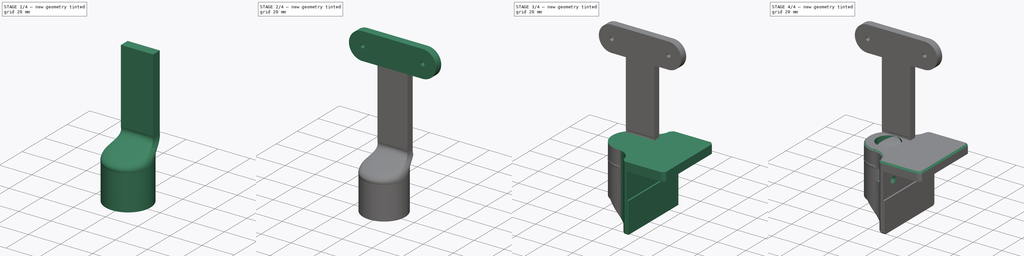
[diagram: build sequence overview — one tinted view per stage of 4, left to right]
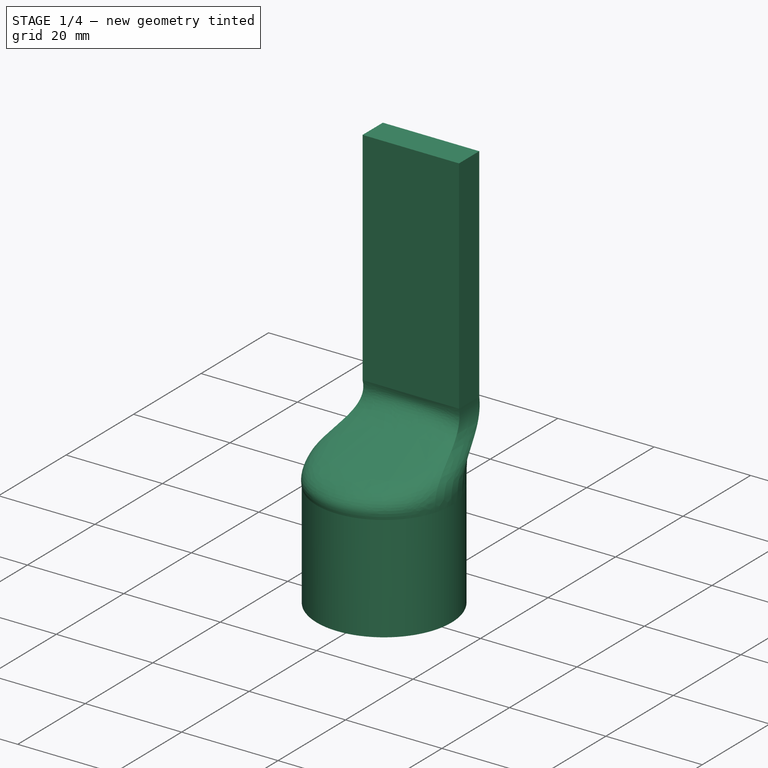
[diagram: stage 1 of 4 — iso view after this stage's code; geometry added in this stage tinted green]
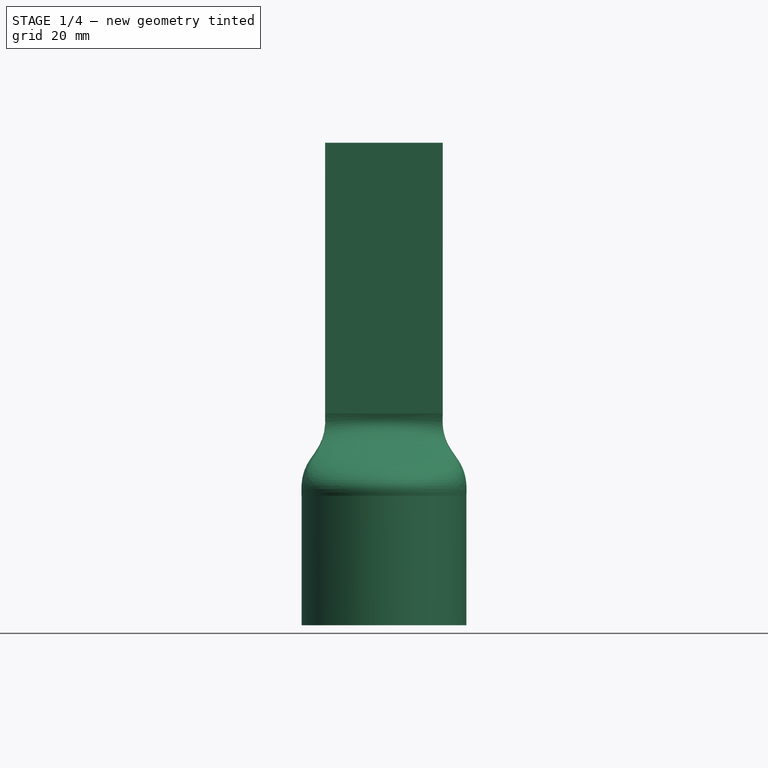
[diagram: stage 1 of 4 — front view after this stage's code; geometry added in this stage tinted green]
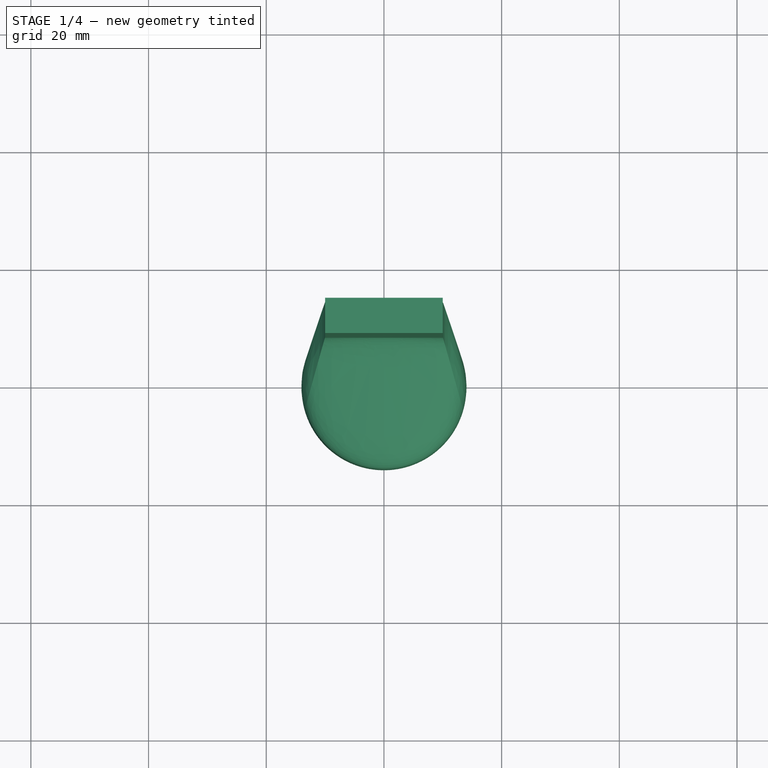
[diagram: stage 1 of 4 — top view after this stage's code; geometry added in this stage tinted green]
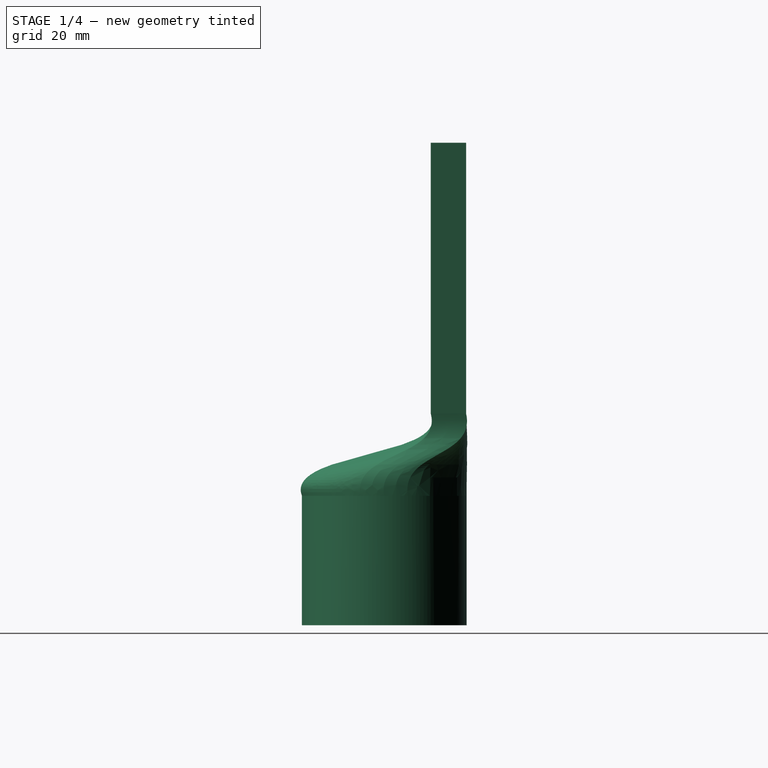
[diagram: stage 1 of 4 — right view after this stage's code; geometry added in this stage tinted green]
FCSTD DOCUMENT  (FreeCAD 0.21R33771 (Git))
Label: _RaspiHolder_Stand
License: Creative Commons Attribution 4.0
LicenseURL: https://creativecommons.org/licenses/by/4.0/
objects: Sketcher::SketchObject×12, PartDesign::Pad×4, PartDesign::Pocket×3, PartDesign::Chamfer×2, PartDesign::Body×2, PartDesign::Hole×1, PartDesign::AdditiveLoft×1
note: 36 computed .brp shape members not serialized (recipe doc carries the construction recipe); baked Part::Feature solids carry a one-line shape summary decoded from their .brp

FEATURE [PartDesign::Body] Body  label="StandFoot"
  Group = -> [Sketch,Sketch001,Pad,Pocket,Sketch002,Pocket001,Sketch003,Hole,Chamfer]
  Origin = -> Origin
  Tip = -> Chamfer
FEATURE [Sketcher::SketchObject] Sketch004
  AttachmentOffset = pos=(0,0,2) rot=(0,0,1;0rad)
  FullyConstrained = true
  MapMode = 5
  Placement = pos=(0,0,2) rot=(0,0,1;0rad)
  Support = -> [XY_Plane001]
  sketch-geometry (6):
    g0: LineSegment StartX=-10 StartY=13.9 StartZ=0 EndX=10 EndY=13.9 EndZ=0
    g1: LineSegment StartX=10 StartY=13.9 StartZ=0 EndX=10 EndY=7.9 EndZ=0
    g2: LineSegment StartX=10 StartY=7.9 StartZ=0 EndX=-10 EndY=7.9 EndZ=0
    g3: LineSegment StartX=-10 StartY=7.9 StartZ=0 EndX=-10 EndY=13.9 EndZ=0
    g4: Circle CenterX=0 CenterY=0 CenterZ=0 NormalX=0 NormalY=0 NormalZ=1 AngleXU=0 Radius=14
    g5: GeomPoint X=0 Y=14 Z=0
  constraints (15):
    c: Coincident(g0,g1)
    c: Coincident(g1,g2)
    c: Coincident(g2,g3)
    c: Coincident(g3,g0)
    c: Horizontal(g0)
    c: Vertical(g1)
    c: Vertical(g3)
    c: DistanceY(g3,g3) = 6
    c: DistanceX(g0,g0) = 20
    c: Symmetric(g2,g1,g-2)
    c: Coincident(g4,g-1)
    c: Diameter(g4) = 28
    c: PointOnObject(g5,g4)
    c: PointOnObject(g5,g-2)
    c: DistanceY(g0,g5) = 0.1
FEATURE [Sketcher::SketchObject] Sketch005
  FullyConstrained = true
  MapMode = 5
  Support = -> [XY_Plane001]
  expr: Constraints[11] = Sketch004.Constraints[11]
  expr: Constraints[7] = Sketch004.Constraints[7]
  expr: Constraints[8] = Sketch004.Constraints[8]
  sketch-geometry (5):
    g0: LineSegment StartX=-10 StartY=14 StartZ=0 EndX=10 EndY=14 EndZ=0
    g1: LineSegment StartX=10 StartY=14 StartZ=0 EndX=10 EndY=8 EndZ=0
    g2: LineSegment StartX=10 StartY=8 StartZ=0 EndX=-10 EndY=8 EndZ=0
    g3: LineSegment StartX=-10 StartY=8 StartZ=0 EndX=-10 EndY=14 EndZ=0
    g4: Circle CenterX=0 CenterY=0 CenterZ=0 NormalX=0 NormalY=0 NormalZ=1 AngleXU=0 Radius=14
  constraints (13):
    c: Coincident(g0,g1)
    c: Coincident(g1,g2)
    c: Coincident(g2,g3)
    c: Coincident(g3,g0)
    c: Horizontal(g0)
    c: Vertical(g1)
    c: Vertical(g3)
    c: DistanceY(g3,g3) = 6
    c: DistanceX(g0,g0) = 20
    c: Symmetric(g2,g1,g-2)
    c: Coincident(g4,g-1)
    c: Diameter(g4) = 28
    c: Tangent(g0,g4)
FEATURE [Sketcher::SketchObject] Sketch006
  AttachmentOffset = pos=(0,0,-10) rot=(0,0,1;0rad)
  FullyConstrained = true
  MapMode = 5
  Placement = pos=(0,0,-10) rot=(0,0,1;0rad)
  Support = -> [XY_Plane001]
  sketch-geometry (1):
    g0: Circle CenterX=0 CenterY=0 CenterZ=0 NormalX=0 NormalY=0 NormalZ=1 AngleXU=0 Radius=14
  constraints (2):
    c: Coincident(g0,g-1)
    c: Diameter(g0) = 28
FEATURE [Sketcher::SketchObject] Sketch007
  AttachmentOffset = pos=(0,0,-12) rot=(0,0,1;0rad)
  FullyConstrained = true
  MapMode = 5
  Placement = pos=(0,0,-12) rot=(0,0,1;0rad)
  Support = -> [XY_Plane001]
  sketch-geometry (1):
    g0: Circle CenterX=0 CenterY=0 CenterZ=0 NormalX=0 NormalY=0 NormalZ=1 AngleXU=0 Radius=14
  constraints (2):
    c: Coincident(g0,g-1)
    c: Diameter(g0) = 28
FEATURE [Sketcher::SketchObject] Sketch008
  AttachmentOffset = pos=(0,0,-12) rot=(0,0,1;0rad)
  FullyConstrained = true
  MapMode = 5
  Placement = pos=(0,0,-12) rot=(0,0,1;0rad)
  Support = -> [XY_Plane001]
  sketch-geometry (2):
    g0: Circle CenterX=0 CenterY=0 CenterZ=0 NormalX=0 NormalY=0 NormalZ=1 AngleXU=0 Radius=14
    g1: Circle CenterX=0 CenterY=0 CenterZ=0 NormalX=0 NormalY=0 NormalZ=1 AngleXU=0 Radius=8
  constraints (4):
    c: Coincident(g0,g-1)
    c: Diameter(g0) = 28
    c: Coincident(g1,g0)
    c: Diameter(g1) = 16
FEATURE [PartDesign::AdditiveLoft] AdditiveLoft
  Closed = false
  Profile = -> Sketch004
  Refine = true
  Ruled = false
  Sections = -> [Sketch005,Sketch006,Sketch007]
FEATURE [PartDesign::Pad] Pad001
  BaseFeature = -> AdditiveLoft
  Direction = (0,0,1)
  Length = 22
  Length2 = 10
  Profile = -> Sketch008
  ReferenceAxis = -> Sketch008 [N_Axis]
  Refine = true
  Reversed = true
  Type = 0
FEATURE [Sketcher::SketchObject] Sketch009
  AttachmentOffset = pos=(0,0,2) rot=(0,0,1;0rad)
  FullyConstrained = true
  MapMode = 5
  Placement = pos=(0,0,2) rot=(0,0,1;0rad)
  Support = -> [XY_Plane001]
  expr: Constraints[11] = Sketch004.Constraints[11]
  expr: Constraints[14] = Sketch004.Constraints[14]
  expr: Constraints[7] = Sketch004.Constraints[7]
  expr: Constraints[8] = Sketch004.Constraints[8]
  sketch-geometry (6):
    g0: LineSegment StartX=-10 StartY=13.9 StartZ=0 EndX=10 EndY=13.9 EndZ=0
    g1: LineSegment StartX=10 StartY=13.9 StartZ=0 EndX=10 EndY=7.9 EndZ=0
    g2: LineSegment StartX=10 StartY=7.9 StartZ=0 EndX=-10 EndY=7.9 EndZ=0
    g3: LineSegment StartX=-10 StartY=7.9 StartZ=0 EndX=-10 EndY=13.9 EndZ=0
    g4: Circle CenterX=0 CenterY=0 CenterZ=0 NormalX=0 NormalY=0 NormalZ=1 AngleXU=0 Radius=14
    g5: GeomPoint X=0 Y=14 Z=0
  constraints (15):
    c: Coincident(g0,g1)
    c: Coincident(g1,g2)
    c: Coincident(g2,g3)
    c: Coincident(g3,g0)
    c: Horizontal(g0)
    c: Vertical(g1)
    c: Vertical(g3)
    c: DistanceY(g3,g3) = 6
    c: DistanceX(g0,g0) = 20
    c: Symmetric(g2,g1,g-2)
    c: Coincident(g4,g-1)
    c: Diameter(g4) = 28
    c: PointOnObject(g5,g4)
    c: PointOnObject(g5,g-2)
    c: DistanceY(g0,g5) = 0.1
FEATURE [PartDesign::Pad] Pad002
  BaseFeature = -> Pad001
  Direction = (0,0,1)
  Length = 46
  Length2 = 10
  Profile = -> Sketch009
  ReferenceAxis = -> Sketch009 [N_Axis]
  Refine = true
  Type = 0
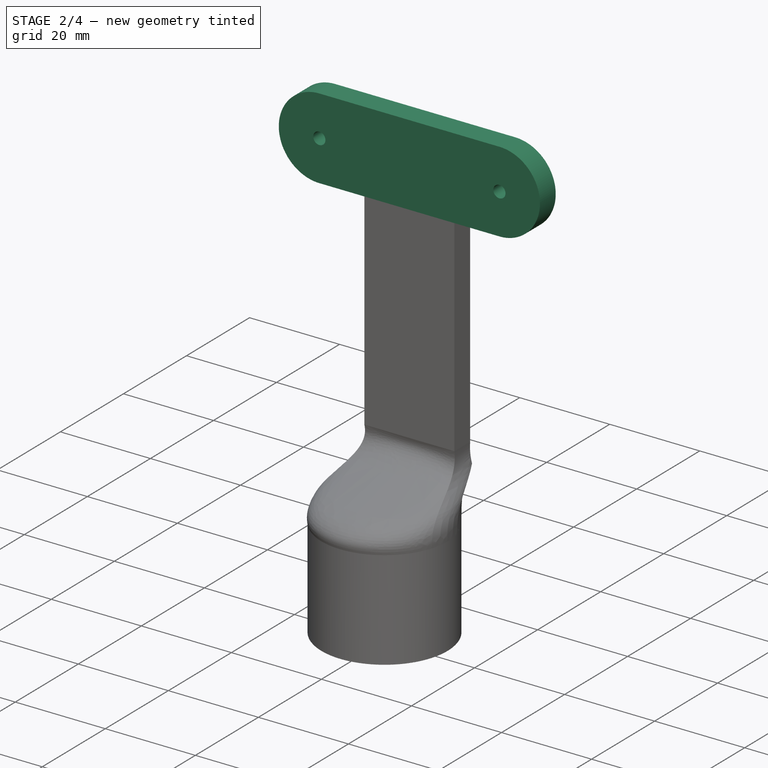
[diagram: stage 2 of 4 — iso view after this stage's code; geometry added in this stage tinted green]
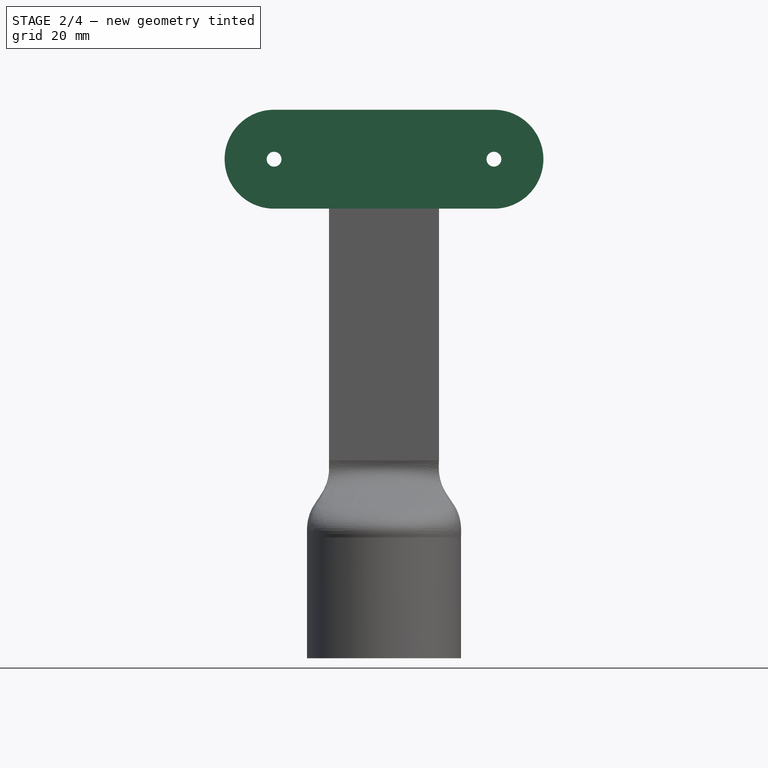
[diagram: stage 2 of 4 — front view after this stage's code; geometry added in this stage tinted green]
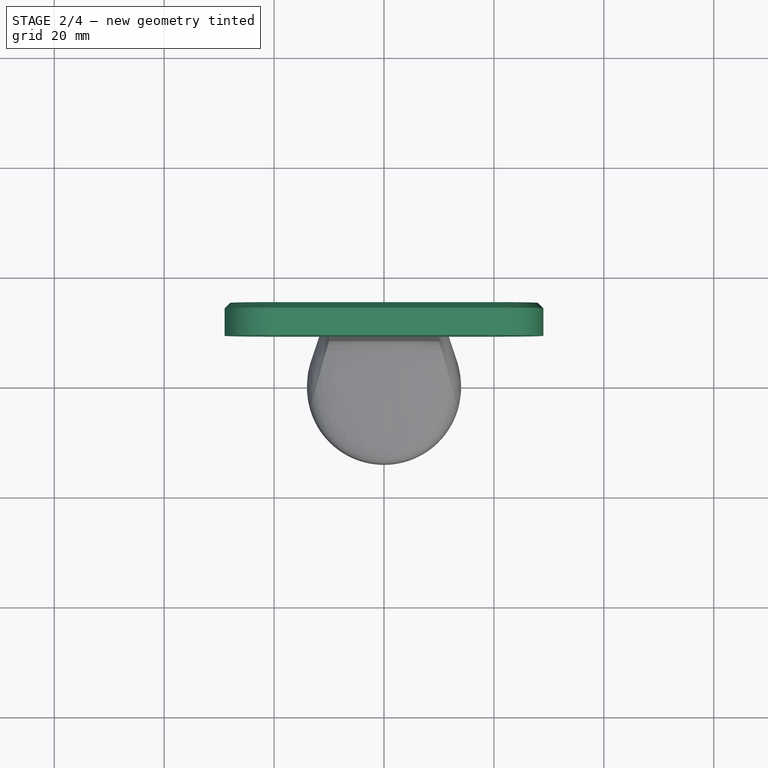
[diagram: stage 2 of 4 — top view after this stage's code; geometry added in this stage tinted green]
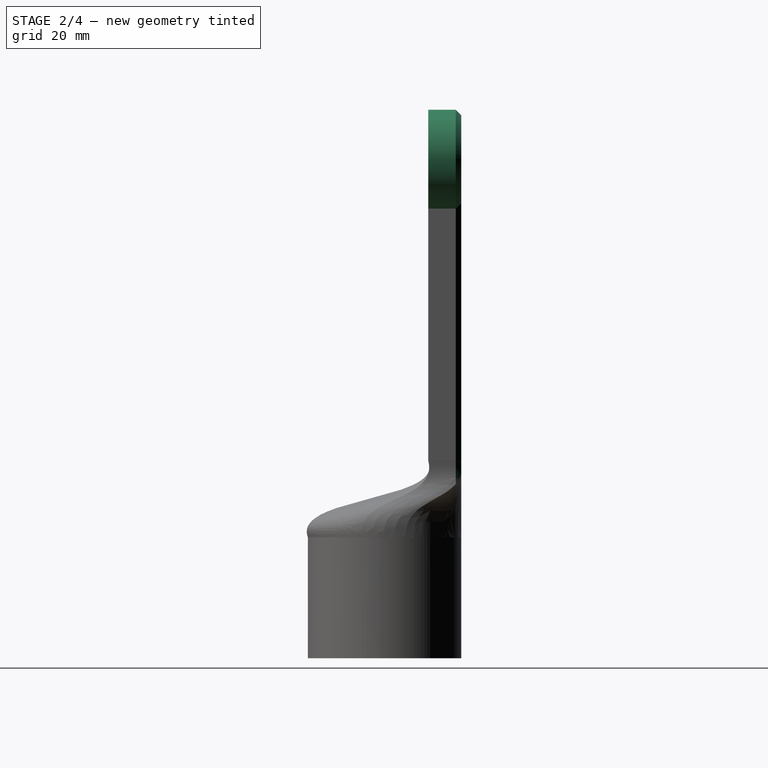
[diagram: stage 2 of 4 — right view after this stage's code; geometry added in this stage tinted green]
FEATURE [Sketcher::SketchObject] Sketch010
  AttachmentOffset = pos=(0,0,-13.9) rot=(0,0,1;0rad)
  FullyConstrained = true
  MapMode = 5
  Placement = pos=(0,13.9,-3.1e-15) rot=(1,0,0;1.5708rad)
  Support = -> [XZ_Plane001]
  sketch-geometry (6):
    g0: ArcOfCircle CenterX=-20 CenterY=56.8 CenterZ=0 NormalX=0 NormalY=0 NormalZ=1 AngleXU=0 Radius=9 StartAngle=1.5708 EndAngle=4.71239
    g1: ArcOfCircle CenterX=20 CenterY=56.8 CenterZ=0 NormalX=0 NormalY=0 NormalZ=1 AngleXU=0 Radius=9 StartAngle=4.71239 EndAngle=7.85398
    g2: LineSegment StartX=-20 StartY=47.8 StartZ=0 EndX=20 EndY=47.8 EndZ=0
    g3: LineSegment StartX=20 StartY=65.8 StartZ=0 EndX=-20 EndY=65.8 EndZ=0
    g4: Circle CenterX=-20 CenterY=56.8 CenterZ=0 NormalX=0 NormalY=0 NormalZ=1 AngleXU=0 Radius=1.35
    g5: Circle CenterX=20 CenterY=56.8 CenterZ=0 NormalX=0 NormalY=0 NormalZ=1 AngleXU=0 Radius=1.35
  constraints (13):
    c: Tangent(g0,g2) = -1.5708
    c: Tangent(g2,g1) = -1.5708
    c: Tangent(g1,g3) = -1.5708
    c: Tangent(g3,g0) = -1.5708
    c: Equal(g0,g1)
    c: Symmetric(g1,g0,g-2)
    c: Radius(g0) = 9
    c: DistanceX(g3,g3) = 40
    c: DistanceY(g-1,g1) = 56.8
    c: Coincident(g4,g0)
    c: Coincident(g5,g1)
    c: Equal(g4,g5)
    c: Diameter(g4) = 2.7
FEATURE [PartDesign::Pad] Pad003
  BaseFeature = -> Pad002
  Direction = (0,-1,2e-16)
  Length = 6
  Length2 = 10
  Profile = -> Sketch010
  ReferenceAxis = -> Sketch010 [N_Axis]
  Refine = true
  Type = 0
FEATURE [Sketcher::SketchObject] Sketch011
  AttachmentOffset = pos=(0,0,2) rot=(0,0,1;0rad)
  FullyConstrained = true
  MapMode = 5
  Placement = pos=(0,0,2) rot=(0,0,1;0rad)
  Support = -> [XY_Plane001]
  sketch-geometry (4):
    g0: LineSegment StartX=-15 StartY=15.9 StartZ=0 EndX=15 EndY=15.9 EndZ=0
    g1: LineSegment StartX=15 StartY=15.9 StartZ=0 EndX=15 EndY=13.9 EndZ=0
    g2: LineSegment StartX=15 StartY=13.9 StartZ=0 EndX=-15 EndY=13.9 EndZ=0
    g3: LineSegment StartX=-15 StartY=13.9 StartZ=0 EndX=-15 EndY=15.9 EndZ=0
  constraints (11):
    c: Coincident(g0,g1)
    c: Coincident(g1,g2)
    c: Coincident(g2,g3)
    c: Coincident(g3,g0)
    c: Horizontal(g2)
    c: Vertical(g1)
    c: Vertical(g3)
    c: DistanceY(g-1,g2) = 13.9
    c: Symmetric(g0,g0,g-2)
    c: DistanceY(g3,g3) = 2
    c: DistanceX(g0,g0) = 30
FEATURE [PartDesign::Pocket] Pocket002
  BaseFeature = -> Pad003
  Direction = (0,0,-1)
  Length = 5
  Length2 = 5
  Profile = -> Sketch011
  ReferenceAxis = -> Sketch011 [N_Axis]
  Refine = true
  Type = 1
FEATURE [PartDesign::Chamfer] Chamfer001
  Angle = 45
  Base = -> Pocket002 [Edge18,Edge34,Edge36]
  BaseFeature = -> Pocket002
  ChamferType = 0
  FlipDirection = false
  Refine = true
  Size = 1
  Size2 = 1
  SupportTransform = false
  UseAllEdges = false
FEATURE [PartDesign::Body] Body001  label="StandHeadRaspi"
  Group = -> [Sketch004,Sketch005,Sketch006,Sketch007,Sketch008,AdditiveLoft,Pad001,Sketch009,Pad002,Sketch010,Pad003,Sketch011,Pocket002,Chamfer001]
  Origin = -> Origin001
  Placement = pos=(0,0,54.6) rot=(0,0,1;1.309rad)
  Tip = -> Chamfer001
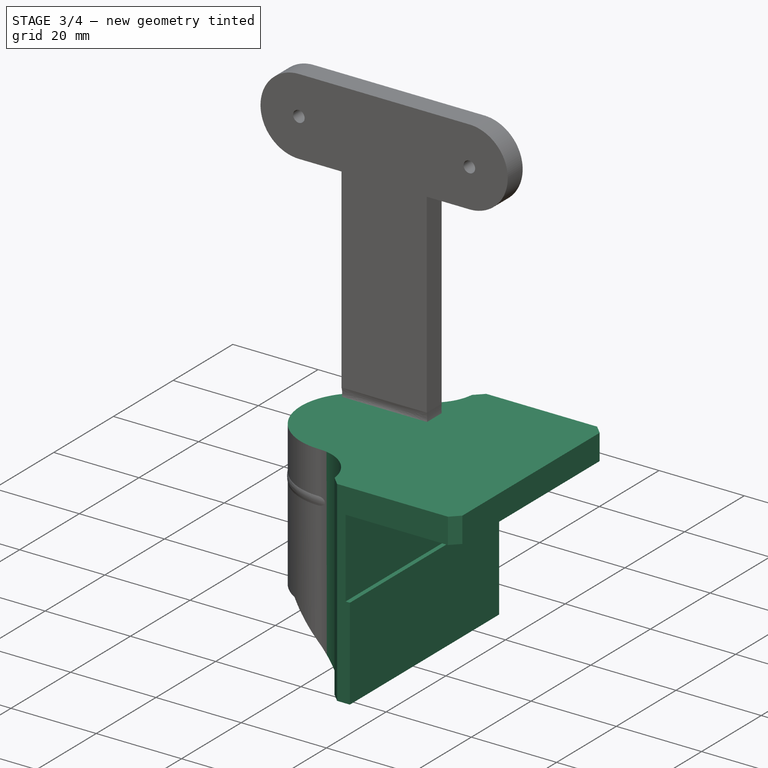
[diagram: stage 3 of 4 — iso view after this stage's code; geometry added in this stage tinted green]
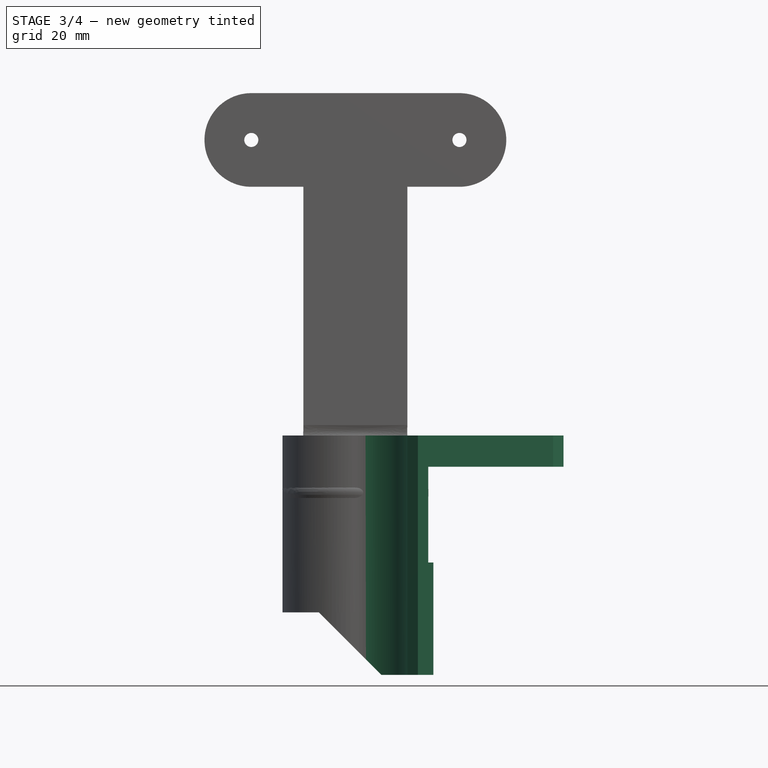
[diagram: stage 3 of 4 — front view after this stage's code; geometry added in this stage tinted green]
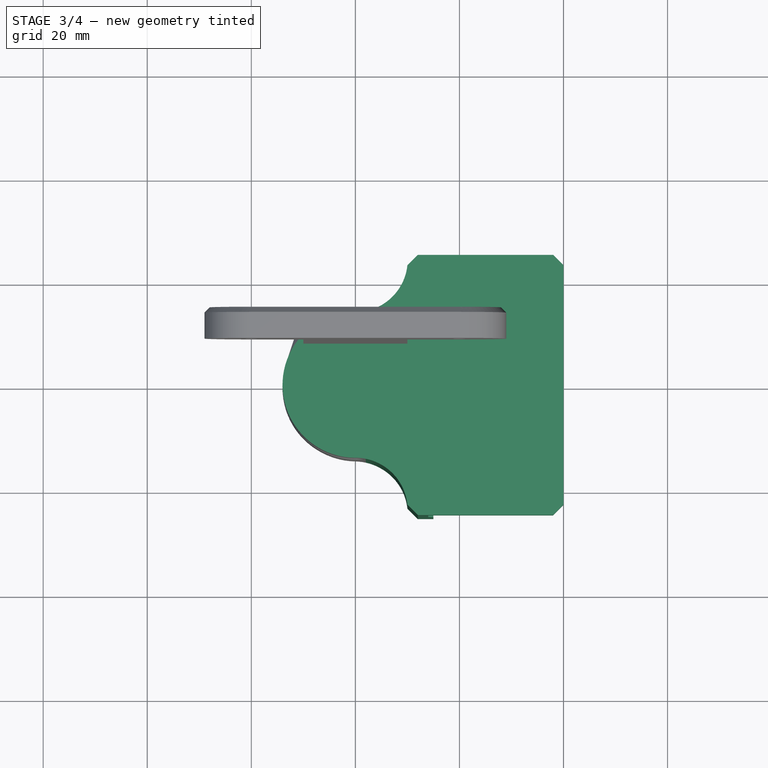
[diagram: stage 3 of 4 — top view after this stage's code; geometry added in this stage tinted green]
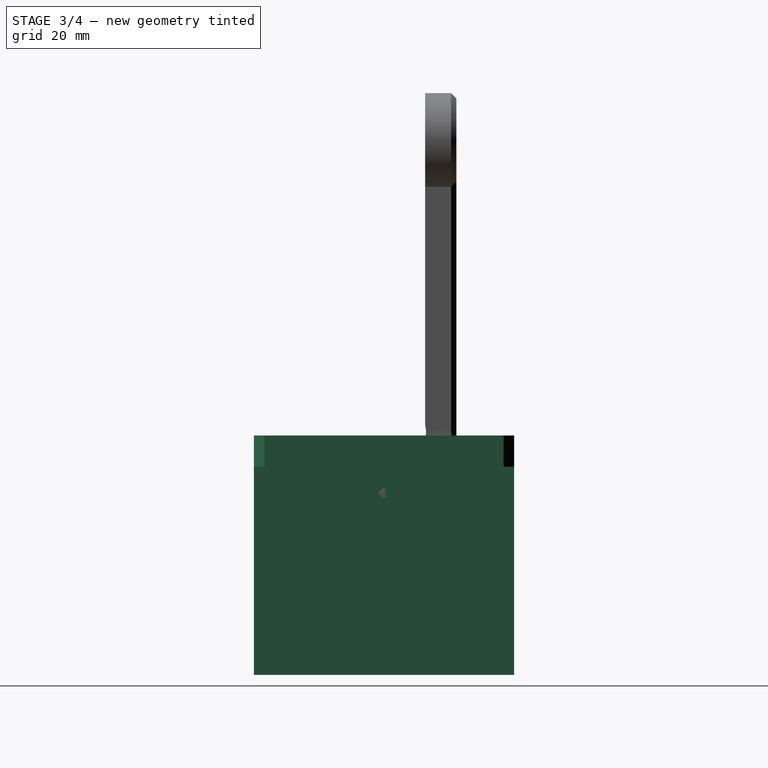
[diagram: stage 3 of 4 — right view after this stage's code; geometry added in this stage tinted green]
FEATURE [Sketcher::SketchObject] Sketch
  FullyConstrained = true
  MapMode = 5
  Support = -> [XY_Plane]
  sketch-geometry (10):
    g0: ArcOfCircle CenterX=0 CenterY=0 CenterZ=0 NormalX=0 NormalY=0 NormalZ=1 AngleXU=0 Radius=14 StartAngle=1.5708 EndAngle=4.71239
    g1: ArcOfCircle CenterX=-4.2e-15 CenterY=24.0556 CenterZ=0 NormalX=0 NormalY=0 NormalZ=1 AngleXU=0 Radius=10.0556 StartAngle=4.71239 EndAngle=6.17802
    g2: ArcOfCircle CenterX=-4.8e-15 CenterY=-24.0556 CenterZ=0 NormalX=0 NormalY=0 NormalZ=1 AngleXU=0 Radius=10.0556 StartAngle=0.105166 EndAngle=1.5708
    g3: LineSegment StartX=10 StartY=23 StartZ=0 EndX=12 EndY=25 EndZ=0
    g4: LineSegment StartX=12 StartY=25 StartZ=0 EndX=38 EndY=25 EndZ=0
    g5: LineSegment StartX=40 StartY=23 StartZ=0 EndX=40 EndY=-23 EndZ=0
    g6: LineSegment StartX=38 StartY=-25 StartZ=0 EndX=12 EndY=-25 EndZ=0
    g7: LineSegment StartX=12 StartY=-25 StartZ=0 EndX=10 EndY=-23 EndZ=0
    g8: LineSegment StartX=40 StartY=-23 StartZ=0 EndX=38 EndY=-25 EndZ=0
    g9: LineSegment StartX=38 StartY=25 StartZ=0 EndX=40 EndY=23 EndZ=0
  constraints (30):
    c: Coincident(g0,g-1)
    c: Radius(g0) = 14
    c: Tangent(g2,g0) = 1.5708
    c: Tangent(g1,g0) = 1.5708
    c: Vertical(g1,g2)
    c: Equal(g2,g1)
    c: Coincident(g3,g4)
    c: Horizontal(g4)
    c: Vertical(g5)
    c: Horizontal(g6)
    c: Coincident(g6,g7)
    c: Coincident(g6,g8)
    c: Coincident(g5,g8)
    c: Equal(g8,g7)
    c: Angle(g8,g6) = 2.35619
    c: Perpendicular(g7,g3)
    c: DistanceY(g6,g5) = 2
    c: DistanceY(g6,g4) = 50
    c: DistanceX(g7,g5) = 30
    c: DistanceX(g0,g3) = 10
    c: Coincident(g7,g2)
    c: Coincident(g1,g3)
    c: Vertical(g2,g0)
    c: Vertical(g0,g0)
    c: Coincident(g9,g4)
    c: Coincident(g9,g5)
    c: Perpendicular(g9,g8)
    c: Equal(g8,g9)
    c: Equal(g9,g3)
    c: Perpendicular(g3,g9)
FEATURE [Sketcher::SketchObject] Sketch001
  FullyConstrained = true
  MapMode = 5
  Placement = pos=(0,0,0) rot=(1,0,0;1.5708rad)
  Support = -> [XZ_Plane]
  sketch-geometry (9):
    g0: LineSegment StartX=15 StartY=-46 StartZ=0 EndX=15 EndY=-24.4 EndZ=0
    g1: LineSegment StartX=15 StartY=-24.4 StartZ=0 EndX=14 EndY=-24.4 EndZ=0
    g2: LineSegment StartX=14 StartY=-24.4 StartZ=0 EndX=14 EndY=-6 EndZ=0
    g3: LineSegment StartX=14 StartY=-6 StartZ=0 EndX=42 EndY=-6 EndZ=0
    g4: LineSegment StartX=42 StartY=-6 StartZ=0 EndX=42 EndY=-46 EndZ=0
    g5: LineSegment StartX=42 StartY=-46 StartZ=0 EndX=15 EndY=-46 EndZ=0
    g6: LineSegment StartX=-15 StartY=-26 StartZ=0 EndX=6 EndY=-47 EndZ=0
    g7: LineSegment StartX=6 StartY=-47 StartZ=0 EndX=-15 EndY=-47 EndZ=0
    g8: LineSegment StartX=-15 StartY=-47 StartZ=0 EndX=-15 EndY=-26 EndZ=0
  constraints (27):
    c: Vertical(g0)
    c: Coincident(g0,g1)
    c: Horizontal(g1)
    c: Coincident(g1,g2)
    c: Vertical(g2)
    c: Coincident(g2,g3)
    c: Horizontal(g3)
    c: Coincident(g3,g4)
    c: Vertical(g4)
    c: Coincident(g4,g5)
    c: Coincident(g5,g0)
    c: Horizontal(g5)
    c: DistanceY(g2,g2) = 18.4
    c: DistanceX(g1,g0) = 1
    c: DistanceY(g4,g4) = 40
    c: DistanceY(g3,g-1) = 6
    c: DistanceX(g-1,g2) = 14
    c: DistanceX(g3,g3) = 28
    c: Coincident(g6,g7)
    c: Horizontal(g7)
    c: Coincident(g7,g8)
    c: Coincident(g8,g6)
    c: Vertical(g8)
    c: Angle(g6,g7) = 0.785398
    c: DistanceX(g6,g-1) = 15
    c: DistanceY(g7,g-1) = 47
    c: DistanceX(g7,g7) = 21
FEATURE [PartDesign::Pad] Pad
  Direction = (0,0,1)
  Length = 46
  Length2 = 10
  Profile = -> Sketch
  ReferenceAxis = -> Sketch [N_Axis]
  Refine = true
  Reversed = true
  Type = 0
FEATURE [PartDesign::Pocket] Pocket
  BaseFeature = -> Pad
  Direction = (0,1,-2e-16)
  Length = 5
  Length2 = 5
  Midplane = true
  Profile = -> Sketch001
  ReferenceAxis = -> Sketch001 [N_Axis]
  Refine = true
  Type = 1
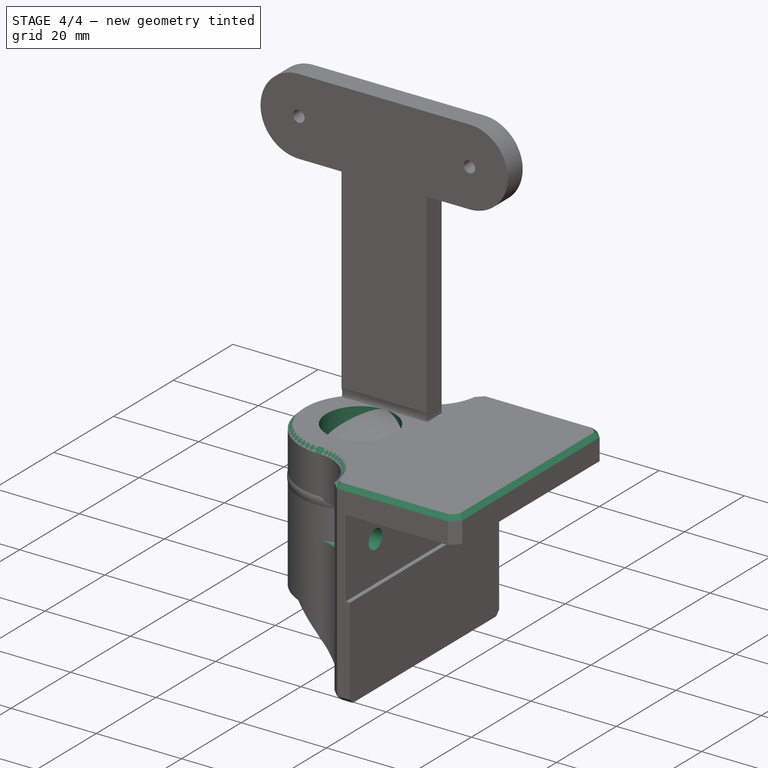
[diagram: stage 4 of 4 — iso view after this stage's code; geometry added in this stage tinted green]
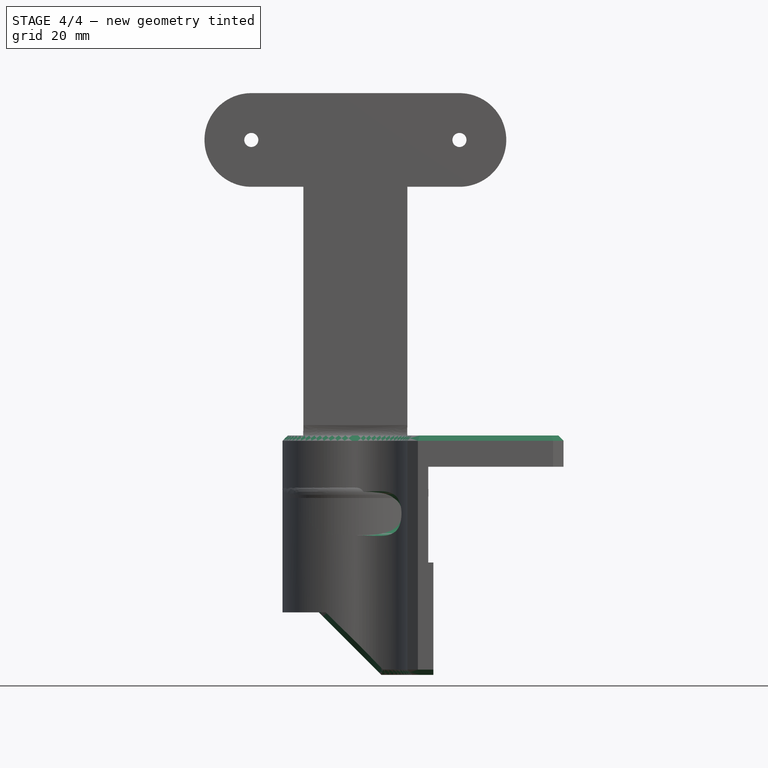
[diagram: stage 4 of 4 — front view after this stage's code; geometry added in this stage tinted green]
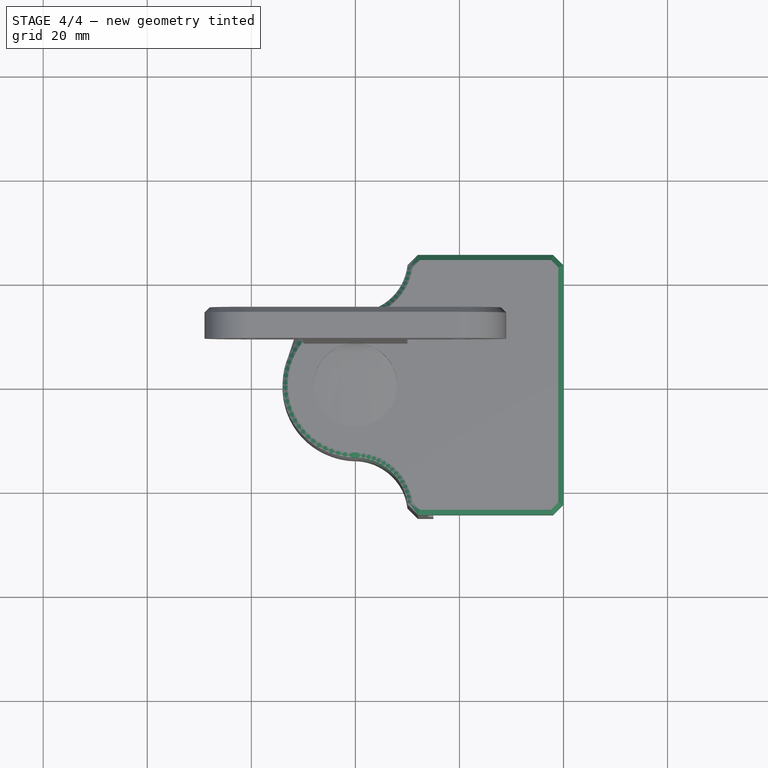
[diagram: stage 4 of 4 — top view after this stage's code; geometry added in this stage tinted green]
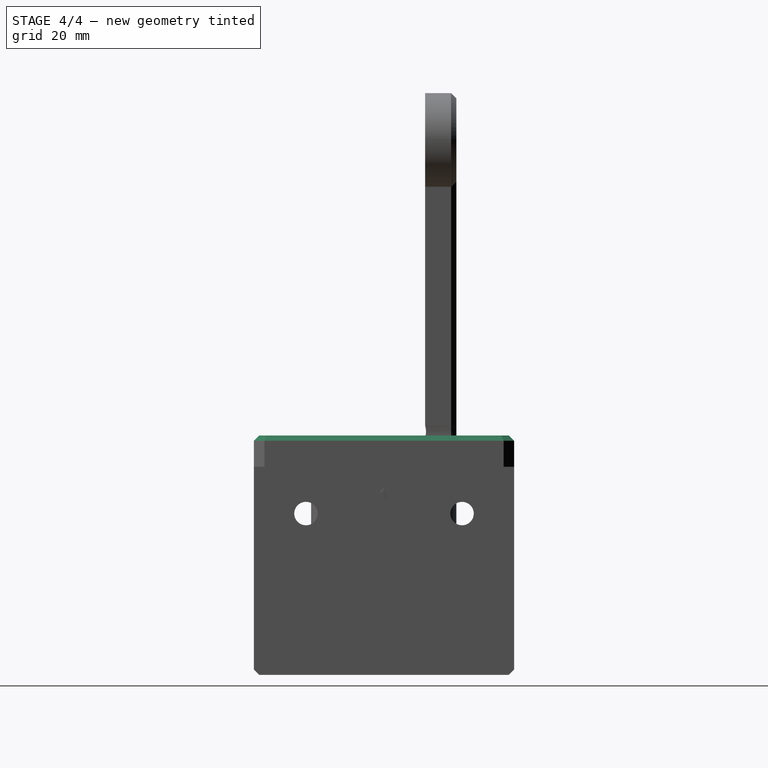
[diagram: stage 4 of 4 — right view after this stage's code; geometry added in this stage tinted green]
FEATURE [Sketcher::SketchObject] Sketch002
  FullyConstrained = true
  MapMode = 5
  Support = -> [XY_Plane]
  sketch-geometry (1):
    g0: Circle CenterX=0 CenterY=0 CenterZ=0 NormalX=0 NormalY=0 NormalZ=1 AngleXU=0 Radius=8
  constraints (2):
    c: Coincident(g0,g-1)
    c: Diameter(g0) = 16
FEATURE [PartDesign::Pocket] Pocket001
  BaseFeature = -> Pocket
  Direction = (0,0,-1)
  Length = 30
  Length2 = 5
  Profile = -> Sketch002
  ReferenceAxis = -> Sketch002 [N_Axis]
  Refine = true
  Type = 0
FEATURE [Sketcher::SketchObject] Sketch003
  AttachmentOffset = pos=(0,0,-14) rot=(0,0,1;0rad)
  FullyConstrained = true
  MapMode = 5
  Placement = pos=(-14,3.1e-15,-3.1e-15) rot=(0.57735,0.57735,0.57735;2.0944rad)
  Support = -> [YZ_Plane]
  sketch-geometry (2):
    g0: Circle CenterX=-15 CenterY=-15 CenterZ=0 NormalX=0 NormalY=0 NormalZ=1 AngleXU=0 Radius=4
    g1: Circle CenterX=15 CenterY=-15 CenterZ=0 NormalX=0 NormalY=0 NormalZ=1 AngleXU=0 Radius=4
  constraints (5):
    c: Symmetric(g0,g1,g-2)
    c: Equal(g0,g1)
    c: Diameter(g0) = 8
    c: DistanceX(g0,g1) = 30
    c: DistanceY(g0,g-1) = 15
FEATURE [PartDesign::Hole] Hole
  BaseFeature = -> Pocket001
  CustomThreadClearance = 0
  Depth = 175.31
  DepthType = 1
  Diameter = 4.5
  DrillForDepth = false
  DrillPoint = 1
  DrillPointAngle = 118
  HoleCutCountersinkAngle = 90
  HoleCutCustomValues = false
  HoleCutDepth = 24
  HoleCutDiameter = 8.6
  HoleCutType = 1
  ModelThread = false
  Profile = -> Sketch003
  Refine = true
  Reversed = true
  Tapered = false
  TaperedAngle = 90
  ThreadClass = 0
  ThreadDepth = 175.31
  ThreadDepthType = 0
  ThreadDirection = 0
  ThreadFit = 0
  ThreadSize = 0
  ThreadType = 0
  Threaded = false
  UseCustomThreadClearance = false
FEATURE [PartDesign::Chamfer] Chamfer
  Angle = 45
  Base = -> Hole [Edge14,Edge12,Edge10,Edge1,Edge9,Edge11,Edge13,Edge15,Edge17,Edge16,Edge33,Edge34,Edge35,Edge37,Edge38,Edge7,Edge40]
  BaseFeature = -> Hole
  ChamferType = 0
  FlipDirection = false
  Refine = true
  Size = 1
  Size2 = 1
  SupportTransform = false
  UseAllEdges = false
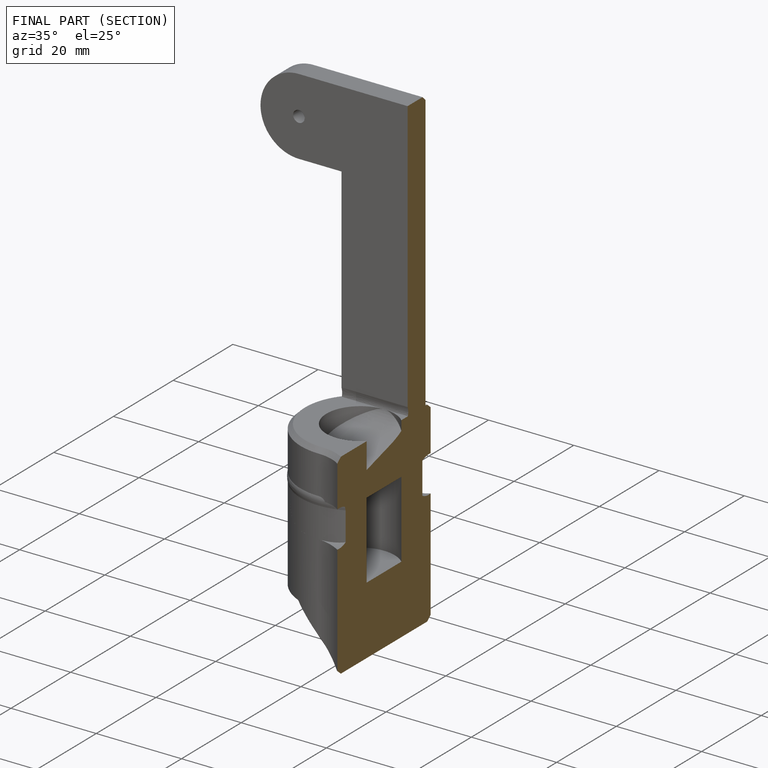
[diagram: finished part — half-section view (interior)]
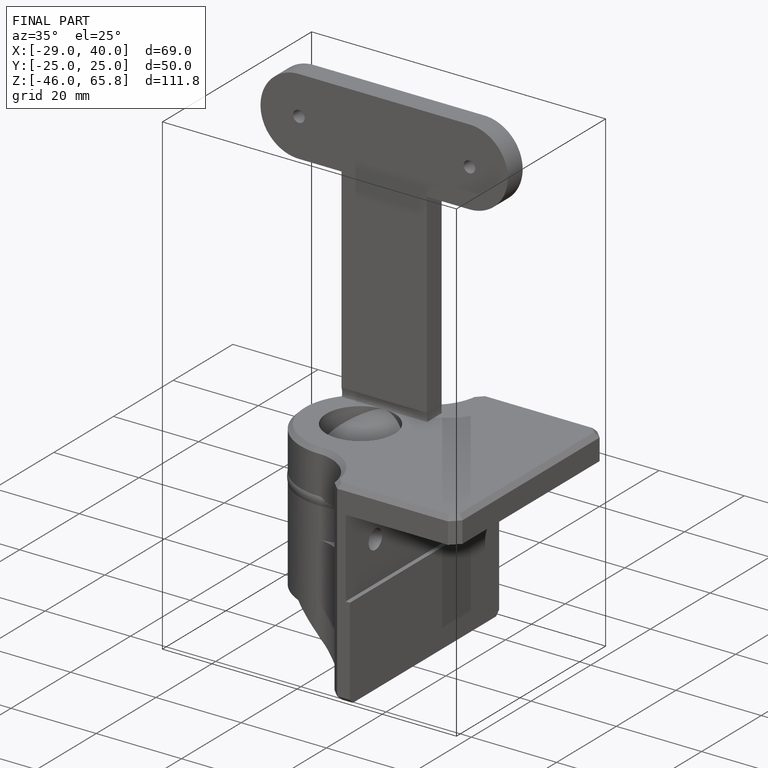
[diagram: finished part — iso view with bounding-box wireframe]
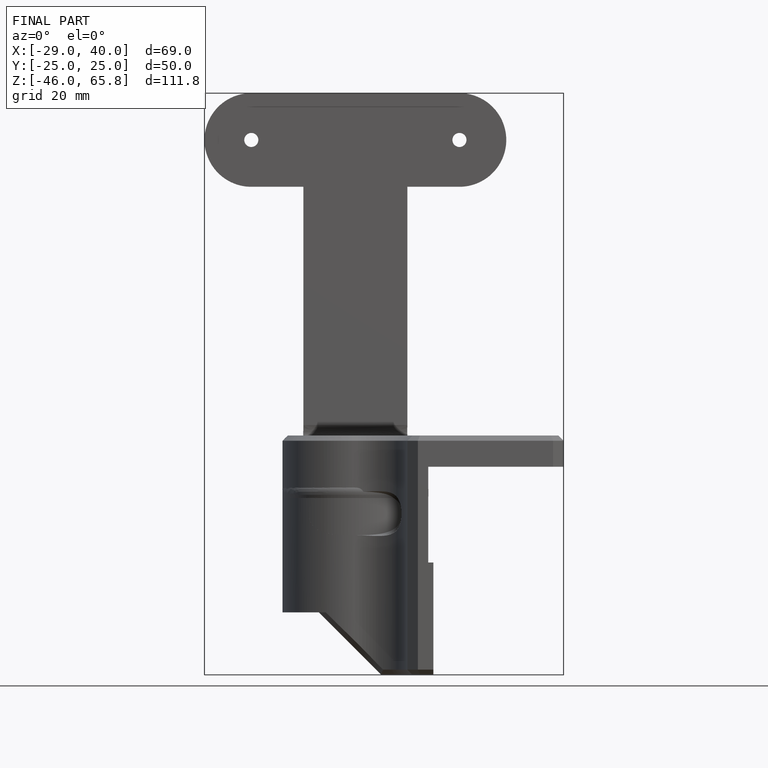
[diagram: finished part — front view with bounding-box wireframe]
